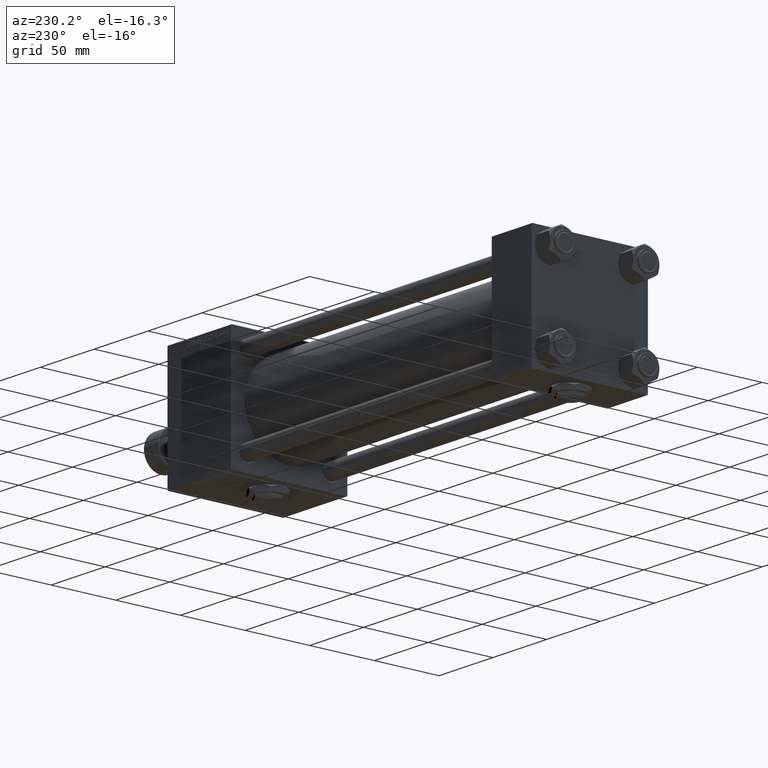
[diagram: clean part render]
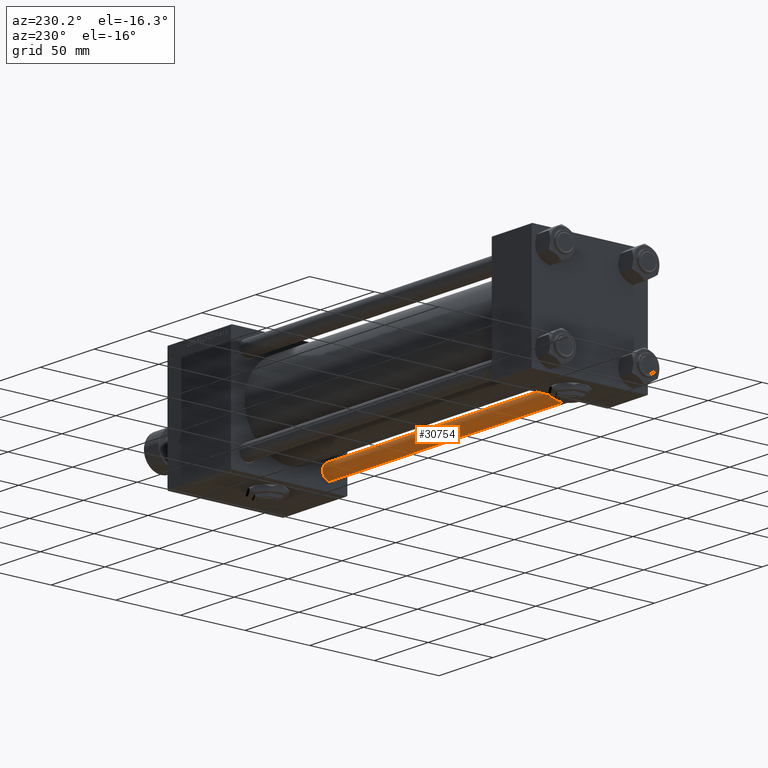
[diagram: same view with one face highlighted and labeled with its STEP entity id]
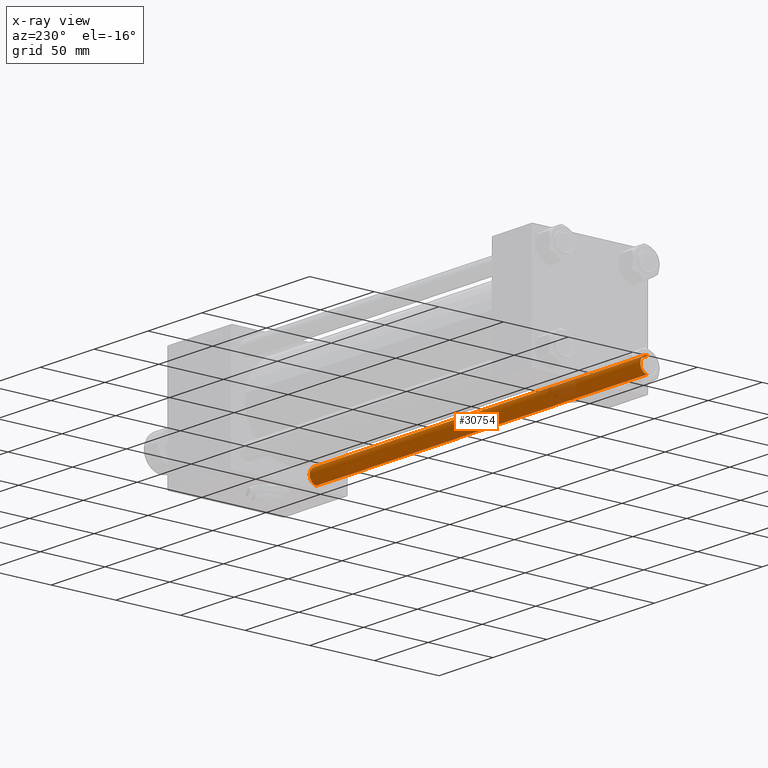
[diagram: x-ray of the same camera — body ghosted, the highlighted face saturated]
A machine part, auxiliary view. The second image highlights one B-rep face of the part: STEP entity #30754.
The next image is the same camera in x-ray: the body ghosted, the highlighted face saturated — about 7% of this face is hidden behind the body in this view.
In plain terms, the highlighted cylindrical surface (edge-blend (fillet) strip) has radius 6 mm, axis along (-1, -0, -0).
Its self-contained STEP definition (entity closure, byte-faithful):
#1178 = DIRECTION ( 'NONE',  ( 1.000000000000000000, 0.000000000000000000, 0.000000000000000000 ) ) ;
#2660 = VERTEX_POINT ( 'NONE', #15299 ) ;
#2931 = CIRCLE ( 'NONE', #37842, 6.000000000000000888 ) ;
#2981 = CARTESIAN_POINT ( 'NONE',  ( 0.000000000000000000, 0.000000000000000000, 308.0000000000000000 ) ) ;
#3274 = LINE ( 'NONE', #52619, #30786 ) ;
#3555 = AXIS2_PLACEMENT_3D ( 'NONE', #50264, #13978, #1178 ) ;
#3806 = LINE ( 'NONE', #36622, #47957 ) ;
#5732 = EDGE_LOOP ( 'NONE', ( #25880, #5893, #50218, #8584 ) ) ;
#5893 = ORIENTED_EDGE ( 'NONE', *, *, #24428, .T. ) ;
#8584 = ORIENTED_EDGE ( 'NONE', *, *, #52669, .T. ) ;
#11274 = DIRECTION ( 'NONE',  ( -0.000000000000000000, -0.000000000000000000, -1.000000000000000000 ) ) ;
#13978 = DIRECTION ( 'NONE',  ( 0.000000000000000000, 0.000000000000000000, -1.000000000000000000 ) ) ;
#14860 = VERTEX_POINT ( 'NONE', #41266 ) ;
#15299 = CARTESIAN_POINT ( 'NONE',  ( 6.000000000000000888, 7.347880794884120722E-16, 307.4999999999999432 ) ) ;
#15502 = DIRECTION ( 'NONE',  ( -0.000000000000000000, -0.000000000000000000, -1.000000000000000000 ) ) ;
#15602 = DIRECTION ( 'NONE',  ( -0.000000000000000000, -0.000000000000000000, 1.000000000000000000 ) ) ;
#20078 = DIRECTION ( 'NONE',  ( -0.000000000000000000, -0.000000000000000000, -1.000000000000000000 ) ) ;
#21405 = CIRCLE ( 'NONE', #3555, 6.000000000000000888 ) ;
#23278 = EDGE_CURVE ( 'NONE', #36051, #14860, #3274, .T. ) ;
#23610 = CARTESIAN_POINT ( 'NONE',  ( 0.000000000000000000, 0.000000000000000000, 0.5000000000000559552 ) ) ;
#24428 = EDGE_CURVE ( 'NONE', #2660, #36051, #21405, .T. ) ;
#25880 = ORIENTED_EDGE ( 'NONE', *, *, #27193, .F. ) ;
#27193 = EDGE_CURVE ( 'NONE', #2660, #46302, #3806, .T. ) ;
#30754 = ADVANCED_FACE ( 'NONE', ( #47536 ), #47795, .T. ) ;
#30786 = VECTOR ( 'NONE', #11274, 1000.000000000000000 ) ;
#31525 = DIRECTION ( 'NONE',  ( -1.000000000000000000, 0.000000000000000000, 0.000000000000000000 ) ) ;
#32067 = CARTESIAN_POINT ( 'NONE',  ( 6.000000000000000888, 7.347880794884120722E-16, 0.5000000000000559552 ) ) ;
#35799 = CARTESIAN_POINT ( 'NONE',  ( -6.000000000000000888, 0.000000000000000000, 307.4999999999999432 ) ) ;
#36051 = VERTEX_POINT ( 'NONE', #35799 ) ;
#36622 = CARTESIAN_POINT ( 'NONE',  ( 6.000000000000000888, 7.347880794884120722E-16, 308.0000000000000000 ) ) ;
#37842 = AXIS2_PLACEMENT_3D ( 'NONE', #23610, #15602, #51900 ) ;
#41266 = CARTESIAN_POINT ( 'NONE',  ( -6.000000000000000888, 0.000000000000000000, 0.5000000000000559552 ) ) ;
#46302 = VERTEX_POINT ( 'NONE', #32067 ) ;
#46368 = AXIS2_PLACEMENT_3D ( 'NONE', #2981, #15502, #31525 ) ;
#47536 = FACE_OUTER_BOUND ( 'NONE', #5732, .T. ) ;
#47795 = CYLINDRICAL_SURFACE ( 'NONE', #46368, 6.000000000000000888 ) ;
#47957 = VECTOR ( 'NONE', #20078, 1000.000000000000000 ) ;
#50218 = ORIENTED_EDGE ( 'NONE', *, *, #23278, .T. ) ;
#50264 = CARTESIAN_POINT ( 'NONE',  ( 0.000000000000000000, 0.000000000000000000, 307.4999999999999432 ) ) ;
#51900 = DIRECTION ( 'NONE',  ( 1.000000000000000000, 0.000000000000000000, 0.000000000000000000 ) ) ;
#52619 = CARTESIAN_POINT ( 'NONE',  ( -6.000000000000000888, 0.000000000000000000, 308.0000000000000000 ) ) ;
#52669 = EDGE_CURVE ( 'NONE', #14860, #46302, #2931, .T. ) ;